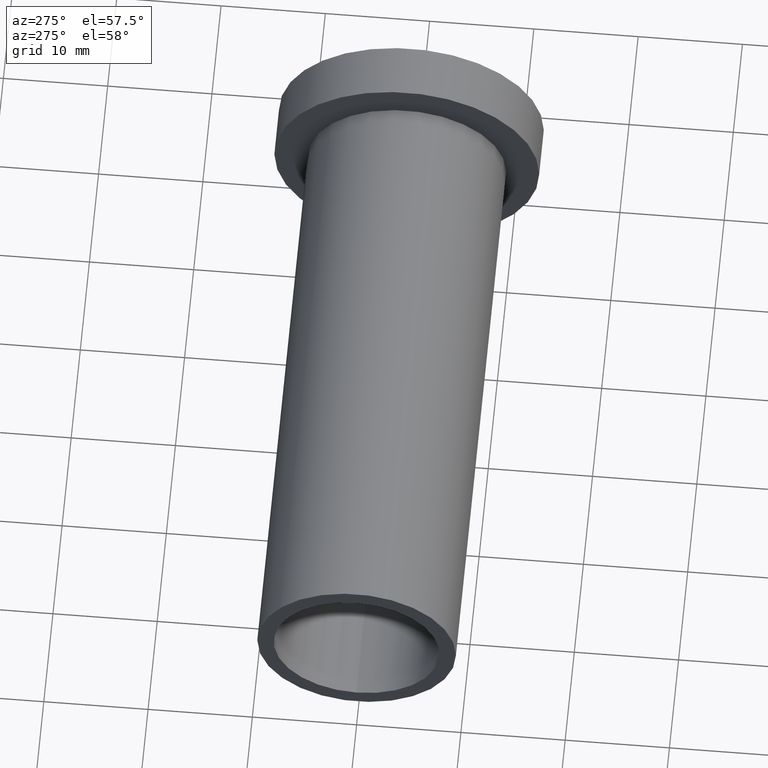
[diagram: clean part render]
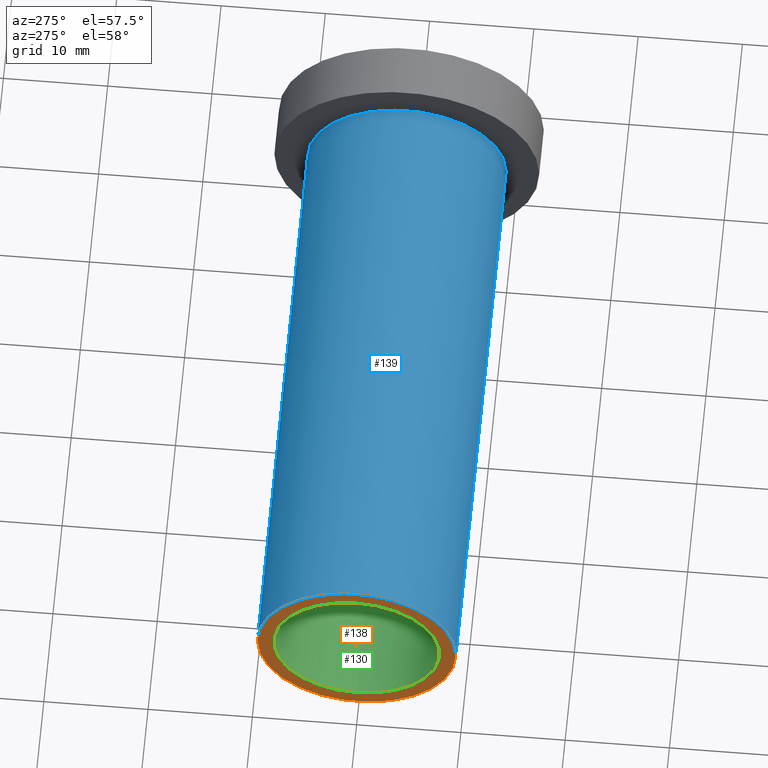
[diagram: same view with three faces highlighted in distinct colors, each labeled with its STEP entity id]
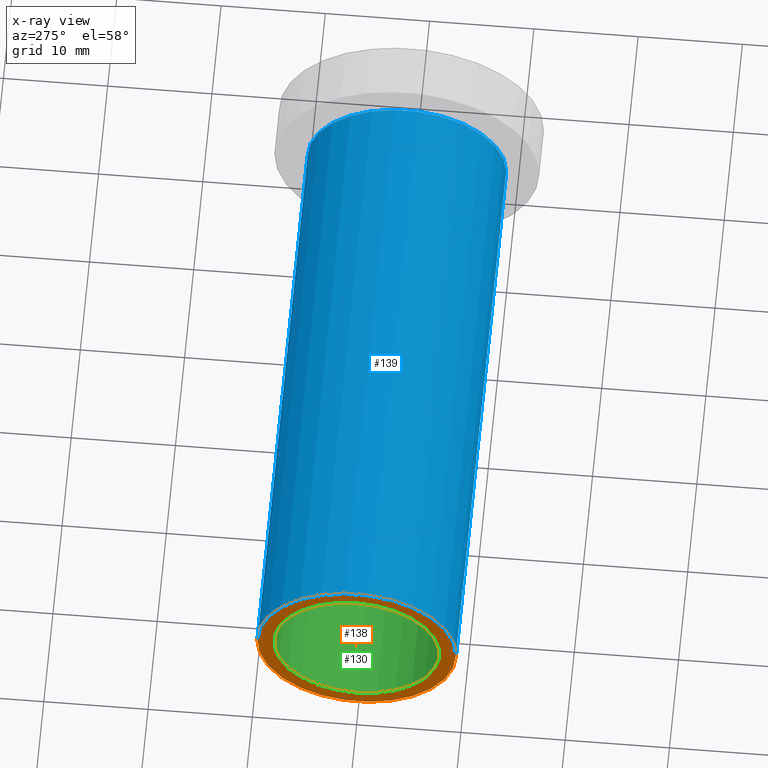
[diagram: x-ray of the same camera — body ghosted, the three highlighted faces saturated]
A machine part, auxiliary view with three faces highlighted in distinct colors.
The next image is the same camera in x-ray (body ghosted, the three faces saturated) — at least one of them is partly hidden behind the body in this view.
Their STEP definitions:

[orange] entity #138 — the highlighted planar face has unit normal (-1, 0, 0).
#19=FACE_BOUND('',#48,.T.);
#24=PLANE('',#180);
#33=FACE_OUTER_BOUND('',#47,.T.);
#47=EDGE_LOOP('',(#119));
#48=EDGE_LOOP('',(#120));
#60=CIRCLE('',#164,7.9585);
#69=CIRCLE('',#181,9.52500000000001);
#70=VERTEX_POINT('',#232);
#79=VERTEX_POINT('',#262);
#80=EDGE_CURVE('',#70,#70,#60,.T.);
#93=EDGE_CURVE('',#79,#79,#69,.T.);
#119=ORIENTED_EDGE('',*,*,#93,.F.);
#120=ORIENTED_EDGE('',*,*,#80,.T.);
#138=ADVANCED_FACE('',(#33,#19),#24,.T.);
#164=AXIS2_PLACEMENT_3D('',#233,#187,#188);
#180=AXIS2_PLACEMENT_3D('',#261,#223,#224);
#181=AXIS2_PLACEMENT_3D('',#263,#225,#226);
#187=DIRECTION('center_axis',(1.,0.,0.));
#188=DIRECTION('ref_axis',(0.,0.,1.));
#223=DIRECTION('center_axis',(-1.,0.,0.));
#224=DIRECTION('ref_axis',(0.,0.,1.));
#225=DIRECTION('center_axis',(1.,0.,0.));
#226=DIRECTION('ref_axis',(0.,0.,-1.));
#232=CARTESIAN_POINT('',(-60.,-9.74635155101421E-16,-7.9585));
#233=CARTESIAN_POINT('Origin',(-60.,0.,0.));
#261=CARTESIAN_POINT('Origin',(-60.,9.52500000000001,0.));
#262=CARTESIAN_POINT('',(-60.,-9.52500000000001,-1.16647607618786E-15));
#263=CARTESIAN_POINT('Origin',(-60.,0.,0.));

[blue] entity #139 — the highlighted cylindrical surface (bore or boss wall) has radius 9.525 mm, axis along (1, 0, 0).
#34=FACE_OUTER_BOUND('',#49,.T.);
#49=EDGE_LOOP('',(#121,#122,#123,#124));
#54=LINE('',#265,#59);
#59=VECTOR('',#229,9.52500000000001);
#63=CIRCLE('',#168,9.52500000000001);
#69=CIRCLE('',#181,9.52500000000001);
#73=VERTEX_POINT('',#240);
#79=VERTEX_POINT('',#262);
#84=EDGE_CURVE('',#73,#73,#63,.T.);
#93=EDGE_CURVE('',#79,#79,#69,.T.);
#94=EDGE_CURVE('',#73,#79,#54,.T.);
#121=ORIENTED_EDGE('',*,*,#84,.F.);
#122=ORIENTED_EDGE('',*,*,#94,.T.);
#123=ORIENTED_EDGE('',*,*,#93,.T.);
#124=ORIENTED_EDGE('',*,*,#94,.F.);
#129=CYLINDRICAL_SURFACE('',#182,9.52500000000001);
#139=ADVANCED_FACE('',(#34),#129,.T.);
#168=AXIS2_PLACEMENT_3D('',#241,#196,#197);
#181=AXIS2_PLACEMENT_3D('',#263,#225,#226);
#182=AXIS2_PLACEMENT_3D('',#264,#227,#228);
#196=DIRECTION('center_axis',(1.,0.,0.));
#197=DIRECTION('ref_axis',(0.,0.,-1.));
#225=DIRECTION('center_axis',(1.,0.,0.));
#226=DIRECTION('ref_axis',(0.,0.,-1.));
#227=DIRECTION('center_axis',(1.,0.,0.));
#228=DIRECTION('ref_axis',(0.,1.,0.));
#229=DIRECTION('',(-1.,0.,0.));
#240=CARTESIAN_POINT('',(-5.,-9.52500000000001,-1.16647607618786E-15));
#241=CARTESIAN_POINT('Origin',(-5.,0.,0.));
#262=CARTESIAN_POINT('',(-60.,-9.52500000000001,-1.16647607618786E-15));
#263=CARTESIAN_POINT('Origin',(-60.,0.,0.));
#264=CARTESIAN_POINT('Origin',(-32.5,0.,0.));
#265=CARTESIAN_POINT('',(-32.5,-9.52500000000001,-1.16647607618786E-15));

[green] entity #130 — the highlighted cylindrical surface (bore or boss wall) has radius 7.9585 mm, axis along (-1, 0, 0).
#25=FACE_OUTER_BOUND('',#35,.T.);
#35=EDGE_LOOP('',(#95,#96,#97,#98));
#50=LINE('',#235,#55);
#55=VECTOR('',#189,7.9585);
#60=CIRCLE('',#164,7.9585);
#61=CIRCLE('',#165,7.9585);
#70=VERTEX_POINT('',#232);
#71=VERTEX_POINT('',#234);
#80=EDGE_CURVE('',#70,#70,#60,.T.);
#81=EDGE_CURVE('',#70,#71,#50,.T.);
#82=EDGE_CURVE('',#71,#71,#61,.T.);
#95=ORIENTED_EDGE('',*,*,#80,.F.);
#96=ORIENTED_EDGE('',*,*,#81,.T.);
#97=ORIENTED_EDGE('',*,*,#82,.F.);
#98=ORIENTED_EDGE('',*,*,#81,.F.);
#125=CYLINDRICAL_SURFACE('',#163,7.9585);
#130=ADVANCED_FACE('',(#25),#125,.F.);
#163=AXIS2_PLACEMENT_3D('',#231,#185,#186);
#164=AXIS2_PLACEMENT_3D('',#233,#187,#188);
#165=AXIS2_PLACEMENT_3D('',#236,#190,#191);
#185=DIRECTION('center_axis',(-1.,0.,0.));
#186=DIRECTION('ref_axis',(0.,0.,1.));
#187=DIRECTION('center_axis',(1.,0.,0.));
#188=DIRECTION('ref_axis',(0.,0.,1.));
#189=DIRECTION('',(1.,0.,0.));
#190=DIRECTION('center_axis',(-1.,0.,0.));
#191=DIRECTION('ref_axis',(0.,0.,1.));
#231=CARTESIAN_POINT('Origin',(-50.5,0.,0.));
#232=CARTESIAN_POINT('',(-60.,-9.74635155101421E-16,-7.9585));
#233=CARTESIAN_POINT('Origin',(-60.,0.,0.));
#234=CARTESIAN_POINT('',(-42.,-9.74635155101421E-16,-7.9585));
#235=CARTESIAN_POINT('',(-50.5,-9.74635155101421E-16,-7.9585));
#236=CARTESIAN_POINT('Origin',(-42.,0.,0.));